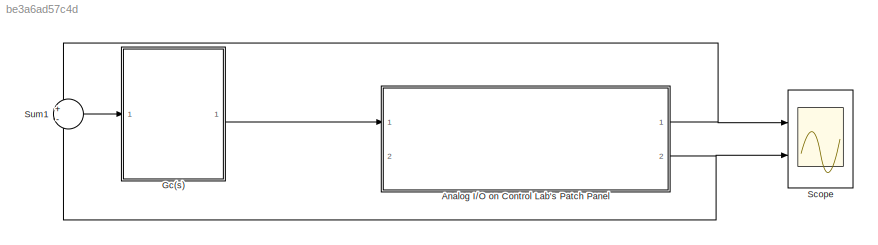
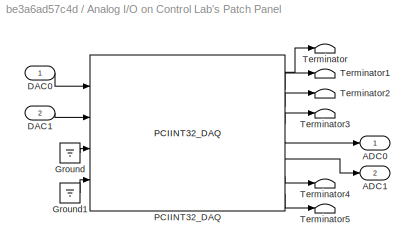
MODEL slx_be3a6ad57c4d
KIND model
CONFIG AbsTol = auto
CONFIG EnableMultiTasking = on
CONFIG FixedStep = auto
CONFIG MaxStep = auto
CONFIG MinStep = auto
CONFIG RelTol = 1e-3
CONFIG SampleTimeConstraint = Unconstrained
CONFIG Solver = ode45
CONFIG SolverName = ode45
CONFIG StartTime = 0.0
CONFIG StopTime = 10.0
BLOCK [SubSystem] Analog I//O on Control Lab's Patch Panel
  Description = Gives access to the Analog I/O ports on the patch panel used at UIUC's control labs.  Connects your digital controller to the analog I/O panel.  You can read in analog data through the ADCs (analog input) and output data using the DACs (analog output)
  Ports = [2, 2]
  RequestExecContextInheritance = off
  Variant = off
BLOCK [Outport] Analog I//O on Control Lab's Patch Panel/ADC0
  IconDisplay = Port number
BLOCK [Outport] Analog I//O on Control Lab's Patch Panel/ADC1
  IconDisplay = Port number
  Port = 2
BLOCK [Inport] Analog I//O on Control Lab's Patch Panel/DAC0
  IconDisplay = Port number
BLOCK [Inport] Analog I//O on Control Lab's Patch Panel/DAC1
  IconDisplay = Port number
  Port = 2
BLOCK [Ground] Analog I//O on Control Lab's Patch Panel/Ground
BLOCK [Ground] Analog I//O on Control Lab's Patch Panel/Ground1
BLOCK [Reference] Analog I//O on Control Lab's Patch Panel/PCIINT32_DAQ  REF=coecsllib/Control Systems Lab
Board Series/PCIINT32_DAQ
  Ports = [4, 8]
  SourceBlock = coecsllib/Control Systems Lab\nBoard Series/PCIINT32_DAQ
  SourceType = Encoder/ADC/DAC Input/Output Module
BLOCK [Terminator] Analog I//O on Control Lab's Patch Panel/Terminator
BLOCK [Terminator] Analog I//O on Control Lab's Patch Panel/Terminator1
BLOCK [Terminator] Analog I//O on Control Lab's Patch Panel/Terminator2
BLOCK [Terminator] Analog I//O on Control Lab's Patch Panel/Terminator3
BLOCK [Terminator] Analog I//O on Control Lab's Patch Panel/Terminator4
BLOCK [Terminator] Analog I//O on Control Lab's Patch Panel/Terminator5
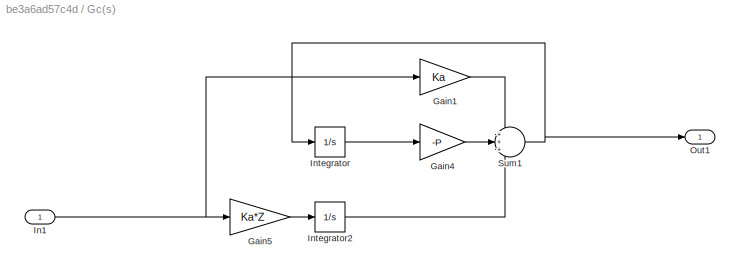
BLOCK [SubSystem] Gc(s)
  Ports = [1, 1]
  RequestExecContextInheritance = off
  Variant = off
BLOCK [Gain] Gc(s)/Gain1
  Gain = Ka
  OutDataTypeStr = Inherit: Inherit via internal rule
  ParamDataTypeStr = Inherit: Inherit via internal rule
  SaturateOnIntegerOverflow = off
BLOCK [Gain] Gc(s)/Gain4
  Gain = -P
  OutDataTypeStr = Inherit: Inherit via internal rule
  ParamDataTypeStr = Inherit: Inherit via internal rule
  SaturateOnIntegerOverflow = off
BLOCK [Gain] Gc(s)/Gain5
  Gain = Ka*Z
  OutDataTypeStr = Inherit: Inherit via internal rule
  ParamDataTypeStr = Inherit: Inherit via internal rule
  SaturateOnIntegerOverflow = off
BLOCK [Inport] Gc(s)/In1
  IconDisplay = Port number
BLOCK [Integrator] Gc(s)/Integrator
  Ports = [1, 1]
BLOCK [Integrator] Gc(s)/Integrator2
  Ports = [1, 1]
BLOCK [Outport] Gc(s)/Out1
  IconDisplay = Port number
BLOCK [Sum] Gc(s)/Sum1
  IconShape = round
  InputSameDT = off
  Inputs = +++
  OutDataTypeStr = Inherit: Inherit via internal rule
  Ports = [3, 1]
  SaturateOnIntegerOverflow = off
BLOCK [Scope] Scope
  ExtModeLoggingTrig = on
  ExtModeUploadOption = log
  NumInputPorts = 2
  Ports = [2]
  ScopeSpecificationString = C++SS(StrPVP('Location','[887, 148, 1214, 457]'),StrPVP('Open','off'),MxPVP('AxesTitles',53,'struct(''axes1'',''%<SignalLabel>'',''axes2'',''%<SignalLabel>'')'),StrPVP('ShowLegends','off'),StrPVP('TimeRange','10'),StrPVP('YMin','-10~-5'),StrPVP('YMax','10~5'),StrPVP('DataFormat','Structure'),StrPVP('LimitDataPoints','off'),StrPVP('BlockParamSampleTime','0'),StrPVP('Decimation','1'),StrPVP('BlockPa...<+23ch>
BLOCK [Sum] Sum1
  IconShape = round
  InputSameDT = off
  Inputs = +-
  OutDataTypeStr = Inherit: Inherit via internal rule
  Ports = [2, 1]
  SaturateOnIntegerOverflow = off
LINE Analog I//O on Control Lab's Patch Panel/DAC0:1 -> Analog I//O on Control Lab's Patch Panel/PCIINT32_DAQ:1
LINE Analog I//O on Control Lab's Patch Panel/DAC1:1 -> Analog I//O on Control Lab's Patch Panel/PCIINT32_DAQ:2
LINE Analog I//O on Control Lab's Patch Panel/Ground1:1 -> Analog I//O on Control Lab's Patch Panel/PCIINT32_DAQ:4
LINE Analog I//O on Control Lab's Patch Panel/Ground:1 -> Analog I//O on Control Lab's Patch Panel/PCIINT32_DAQ:3
LINE Analog I//O on Control Lab's Patch Panel/PCIINT32_DAQ:1 -> Analog I//O on Control Lab's Patch Panel/Terminator:1
LINE Analog I//O on Control Lab's Patch Panel/PCIINT32_DAQ:2 -> Analog I//O on Control Lab's Patch Panel/Terminator1:1
LINE Analog I//O on Control Lab's Patch Panel/PCIINT32_DAQ:3 -> Analog I//O on Control Lab's Patch Panel/Terminator2:1
LINE Analog I//O on Control Lab's Patch Panel/PCIINT32_DAQ:4 -> Analog I//O on Control Lab's Patch Panel/Terminator3:1
LINE Analog I//O on Control Lab's Patch Panel/PCIINT32_DAQ:5 -> Analog I//O on Control Lab's Patch Panel/ADC0:1
LINE Analog I//O on Control Lab's Patch Panel/PCIINT32_DAQ:6 -> Analog I//O on Control Lab's Patch Panel/ADC1:1
LINE Analog I//O on Control Lab's Patch Panel/PCIINT32_DAQ:7 -> Analog I//O on Control Lab's Patch Panel/Terminator4:1
LINE Analog I//O on Control Lab's Patch Panel/PCIINT32_DAQ:8 -> Analog I//O on Control Lab's Patch Panel/Terminator5:1
NET Analog I//O on Control Lab's Patch Panel:1 -> Scope:1, Sum1:1
NET Analog I//O on Control Lab's Patch Panel:2 -> Scope:2, Sum1:2
LINE Gc(s)/Gain1:1 -> Gc(s)/Sum1:1
LINE Gc(s)/Gain4:1 -> Gc(s)/Sum1:2
LINE Gc(s)/Gain5:1 -> Gc(s)/Integrator2:1
NET Gc(s)/In1:1 -> Gc(s)/Gain1:1, Gc(s)/Gain5:1
LINE Gc(s)/Integrator2:1 -> Gc(s)/Sum1:3
LINE Gc(s)/Integrator:1 -> Gc(s)/Gain4:1
NET Gc(s)/Sum1:1 -> Gc(s)/Integrator:1, Gc(s)/Out1:1
LINE Gc(s):1 -> Analog I//O on Control Lab's Patch Panel:1
LINE Sum1:1 -> Gc(s):1
note: NET lines group one-source signal fan-out (src -> all destinations, sorted); 1:1 wires keep LINE
